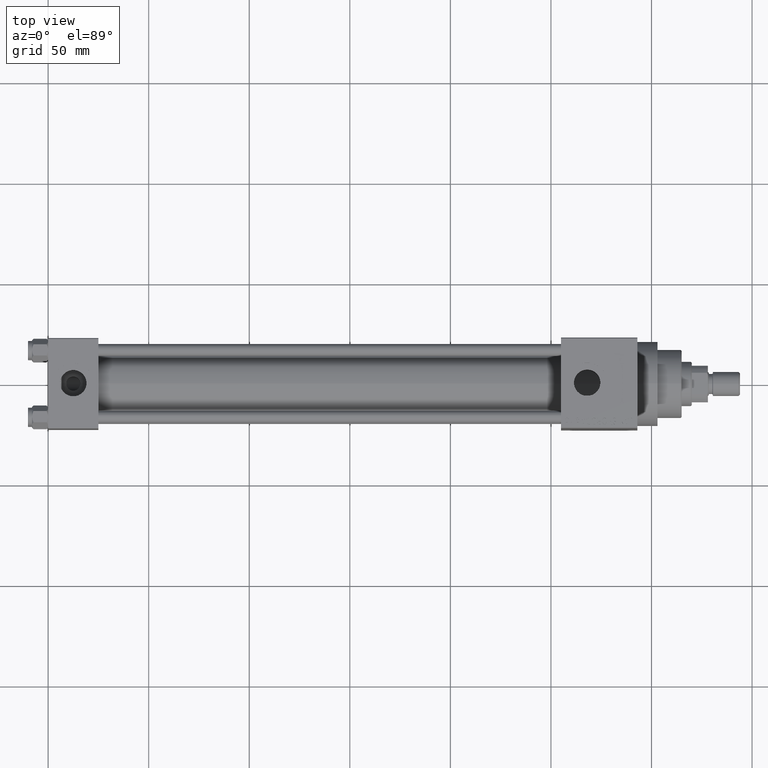
[diagram: clean part render]
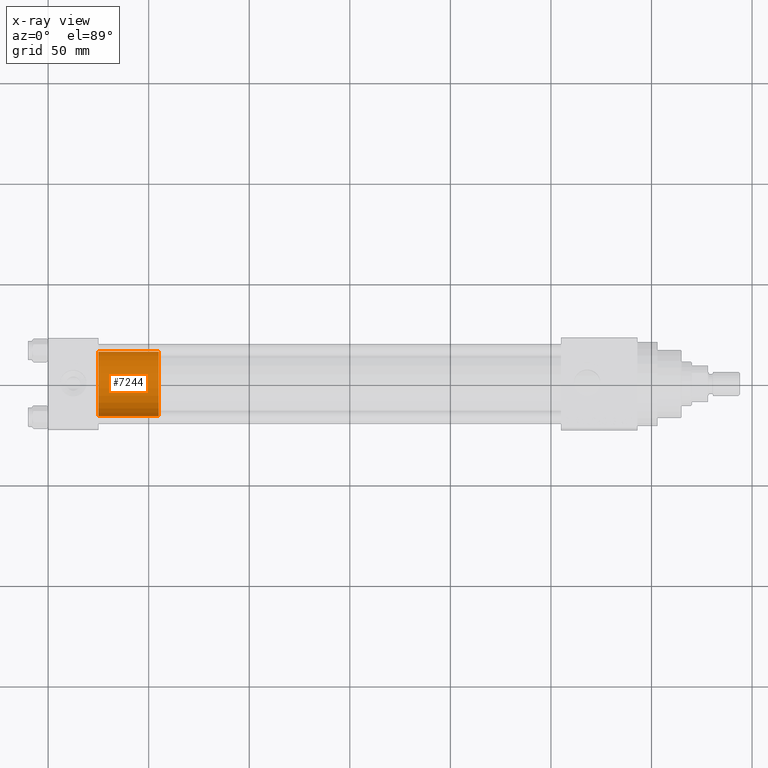
[diagram: x-ray — body ghosted, one internal face saturated and labeled with its STEP entity id]
A machine part, top view, then the same camera in x-ray: the body is ghosted and one INTERNAL B-rep face — a face not visible from any outside direction — is saturated and labeled: STEP entity #7244.
In plain terms, the highlighted cylindrical surface (edge-blend (fillet) strip) has radius 16 mm, axis along (-1, 0, 0).
Its self-contained STEP definition (entity closure, byte-faithful):
#2163 = VECTOR ( 'NONE', #19161, 1000.000000000000000 ) ;
#2401 = CIRCLE ( 'NONE', #45417, 16.00000000000000000 ) ;
#4139 = ORIENTED_EDGE ( 'NONE', *, *, #44129, .F. ) ;
#4538 = CARTESIAN_POINT ( 'NONE',  ( 0.000000000000000000, 0.000000000000000000, 30.00000000000000000 ) ) ;
#6817 = VERTEX_POINT ( 'NONE', #29089 ) ;
#6992 = CIRCLE ( 'NONE', #18495, 16.00000000000000000 ) ;
#7244 = ADVANCED_FACE ( 'NONE', ( #30413 ), #11874, .T. ) ;
#8031 = CARTESIAN_POINT ( 'NONE',  ( 0.000000000000000000, 0.000000000000000000, 30.00000000000000000 ) ) ;
#9729 = VERTEX_POINT ( 'NONE', #10086 ) ;
#10086 = CARTESIAN_POINT ( 'NONE',  ( -16.00000000000000000, 0.000000000000000000, 0.000000000000000000 ) ) ;
#11874 = CYLINDRICAL_SURFACE ( 'NONE', #28746, 16.00000000000000000 ) ;
#12686 = EDGE_LOOP ( 'NONE', ( #29544, #28045, #43386, #4139 ) ) ;
#12835 = CARTESIAN_POINT ( 'NONE',  ( 16.00000000000000000, 1.959434878635765131E-15, 0.000000000000000000 ) ) ;
#14185 = LINE ( 'NONE', #27985, #34922 ) ;
#16446 = EDGE_CURVE ( 'NONE', #43769, #39266, #38646, .T. ) ;
#18495 = AXIS2_PLACEMENT_3D ( 'NONE', #35034, #34084, #37707 ) ;
#19161 = DIRECTION ( 'NONE',  ( -0.000000000000000000, -0.000000000000000000, -1.000000000000000000 ) ) ;
#19565 = DIRECTION ( 'NONE',  ( -0.000000000000000000, -0.000000000000000000, -1.000000000000000000 ) ) ;
#23003 = CARTESIAN_POINT ( 'NONE',  ( 16.00000000000000000, 1.959434878635765131E-15, 30.00000000000000000 ) ) ;
#27613 = DIRECTION ( 'NONE',  ( 0.000000000000000000, 0.000000000000000000, 1.000000000000000000 ) ) ;
#27985 = CARTESIAN_POINT ( 'NONE',  ( -16.00000000000000000, 0.000000000000000000, 30.00000000000000000 ) ) ;
#28045 = ORIENTED_EDGE ( 'NONE', *, *, #16446, .T. ) ;
#28746 = AXIS2_PLACEMENT_3D ( 'NONE', #8031, #19565, #34255 ) ;
#29089 = CARTESIAN_POINT ( 'NONE',  ( -16.00000000000000000, 0.000000000000000000, 30.00000000000000000 ) ) ;
#29544 = ORIENTED_EDGE ( 'NONE', *, *, #31829, .F. ) ;
#30413 = FACE_OUTER_BOUND ( 'NONE', #12686, .T. ) ;
#31829 = EDGE_CURVE ( 'NONE', #43769, #6817, #2401, .T. ) ;
#34084 = DIRECTION ( 'NONE',  ( 0.000000000000000000, 0.000000000000000000, 1.000000000000000000 ) ) ;
#34255 = DIRECTION ( 'NONE',  ( -1.000000000000000000, 0.000000000000000000, 0.000000000000000000 ) ) ;
#34922 = VECTOR ( 'NONE', #43790, 1000.000000000000000 ) ;
#35034 = CARTESIAN_POINT ( 'NONE',  ( 0.000000000000000000, 0.000000000000000000, 0.000000000000000000 ) ) ;
#35196 = EDGE_CURVE ( 'NONE', #39266, #9729, #6992, .T. ) ;
#37705 = CARTESIAN_POINT ( 'NONE',  ( 16.00000000000000000, 1.959434878635765131E-15, 30.00000000000000000 ) ) ;
#37707 = DIRECTION ( 'NONE',  ( 1.000000000000000000, 0.000000000000000000, 0.000000000000000000 ) ) ;
#38225 = DIRECTION ( 'NONE',  ( 1.000000000000000000, 0.000000000000000000, 0.000000000000000000 ) ) ;
#38646 = LINE ( 'NONE', #37705, #2163 ) ;
#39266 = VERTEX_POINT ( 'NONE', #12835 ) ;
#43386 = ORIENTED_EDGE ( 'NONE', *, *, #35196, .T. ) ;
#43769 = VERTEX_POINT ( 'NONE', #23003 ) ;
#43790 = DIRECTION ( 'NONE',  ( -0.000000000000000000, -0.000000000000000000, -1.000000000000000000 ) ) ;
#44129 = EDGE_CURVE ( 'NONE', #6817, #9729, #14185, .T. ) ;
#45417 = AXIS2_PLACEMENT_3D ( 'NONE', #4538, #27613, #38225 ) ;